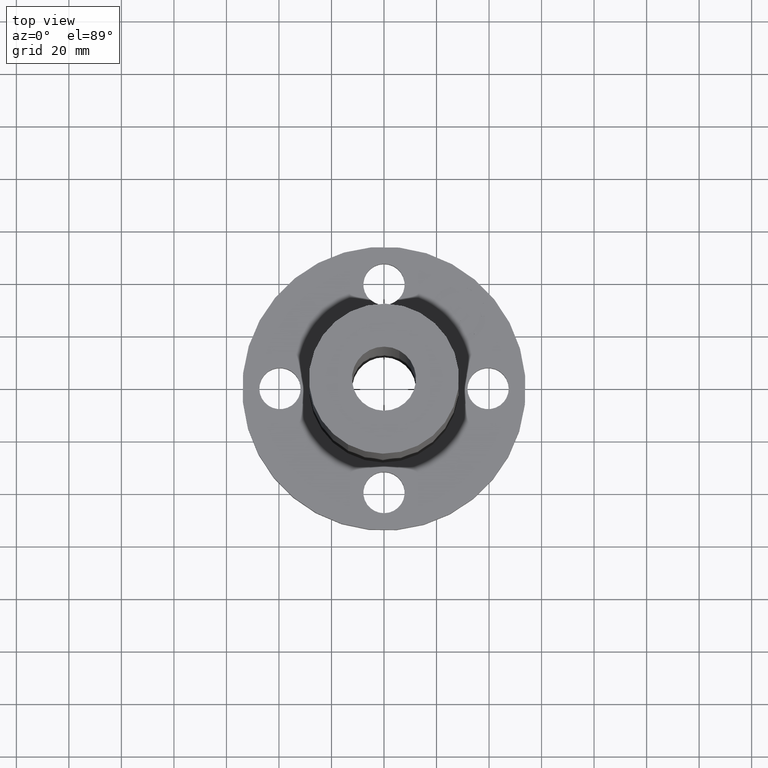
[diagram: clean part render]
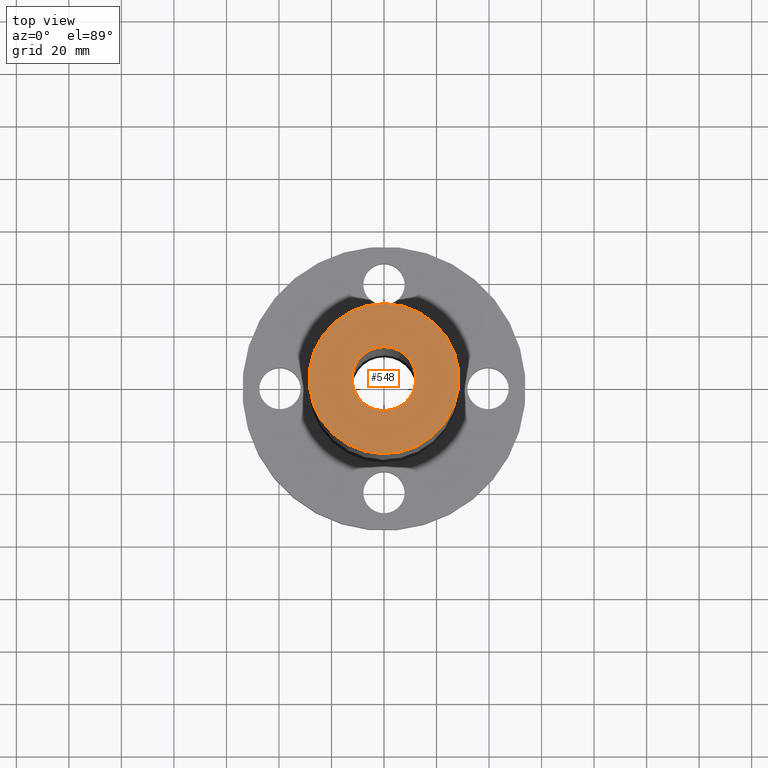
[diagram: same view with one face highlighted and labeled with its STEP entity id]
A machine part, top view. The second image highlights one B-rep face of the part: STEP entity #548.
In plain terms, the highlighted planar face has unit normal (0, 0, -1).
Its self-contained STEP definition (entity closure, byte-faithful):
#492=AXIS2_PLACEMENT_3D('Circle Axis2P3D',#490,#491,$) ;
#511=AXIS2_PLACEMENT_3D('Circle Axis2P3D',#509,#510,$) ;
#524=AXIS2_PLACEMENT_3D('Plane Axis2P3D',#521,#522,#523) ;
#532=AXIS2_PLACEMENT_3D('Circle Axis2P3D',#530,#531,$) ;
#541=AXIS2_PLACEMENT_3D('Circle Axis2P3D',#539,#540,$) ;
#487=CARTESIAN_POINT('Vertex',(0.539353730932,0.987280382131,8.93750000004)) ;
#490=CARTESIAN_POINT('Axis2P3D Location',(0.,0.,8.93750000004)) ;
#494=CARTESIAN_POINT('Vertex',(-0.539353730932,-0.987280382131,8.93750000004)) ;
#509=CARTESIAN_POINT('Axis2P3D Location',(0.,0.,8.93750000004)) ;
#521=CARTESIAN_POINT('Axis2P3D Location',(0.,1.125,8.93750000004)) ;
#530=CARTESIAN_POINT('Axis2P3D Location',(0.,0.,8.93750000004)) ;
#534=CARTESIAN_POINT('Vertex',(-0.230124258531,-0.421239629709,8.93750000004)) ;
#536=CARTESIAN_POINT('Vertex',(0.230124258531,0.421239629709,8.93750000004)) ;
#539=CARTESIAN_POINT('Axis2P3D Location',(0.,0.,8.93750000004)) ;
#491=DIRECTION('Axis2P3D Direction',(0.,0.,-0.0393700787402)) ;
#510=DIRECTION('Axis2P3D Direction',(0.,0.,-0.0393700787402)) ;
#522=DIRECTION('Axis2P3D Direction',(0.,0.,-0.0393700787402)) ;
#523=DIRECTION('Axis2P3D XDirection',(0.0393700787402,0.,0.)) ;
#531=DIRECTION('Axis2P3D Direction',(0.,0.,-0.0393700787402)) ;
#540=DIRECTION('Axis2P3D Direction',(0.,0.,-0.0393700787402)) ;
#527=ORIENTED_EDGE('',*,*,#496,.F.) ;
#528=ORIENTED_EDGE('',*,*,#513,.F.) ;
#545=ORIENTED_EDGE('',*,*,#538,.T.) ;
#546=ORIENTED_EDGE('',*,*,#543,.T.) ;
#547=FACE_BOUND('',#544,.T.) ;
#548=ADVANCED_FACE('PartBody',(#529,#547),#525,.F.) ;
#493=CIRCLE('generated circle',#492,1.125) ;
#512=CIRCLE('generated circle',#511,1.125) ;
#533=CIRCLE('generated circle',#532,0.480000000002) ;
#542=CIRCLE('generated circle',#541,0.480000000002) ;
#496=EDGE_CURVE('',#488,#495,#493,.T.) ;
#513=EDGE_CURVE('',#495,#488,#512,.T.) ;
#538=EDGE_CURVE('',#535,#537,#533,.T.) ;
#543=EDGE_CURVE('',#537,#535,#542,.T.) ;
#526=EDGE_LOOP('',(#527,#528)) ;
#544=EDGE_LOOP('',(#545,#546)) ;
#529=FACE_OUTER_BOUND('',#526,.T.) ;
#525=PLANE('',#524) ;
#488=VERTEX_POINT('',#487) ;
#495=VERTEX_POINT('',#494) ;
#535=VERTEX_POINT('',#534) ;
#537=VERTEX_POINT('',#536) ;